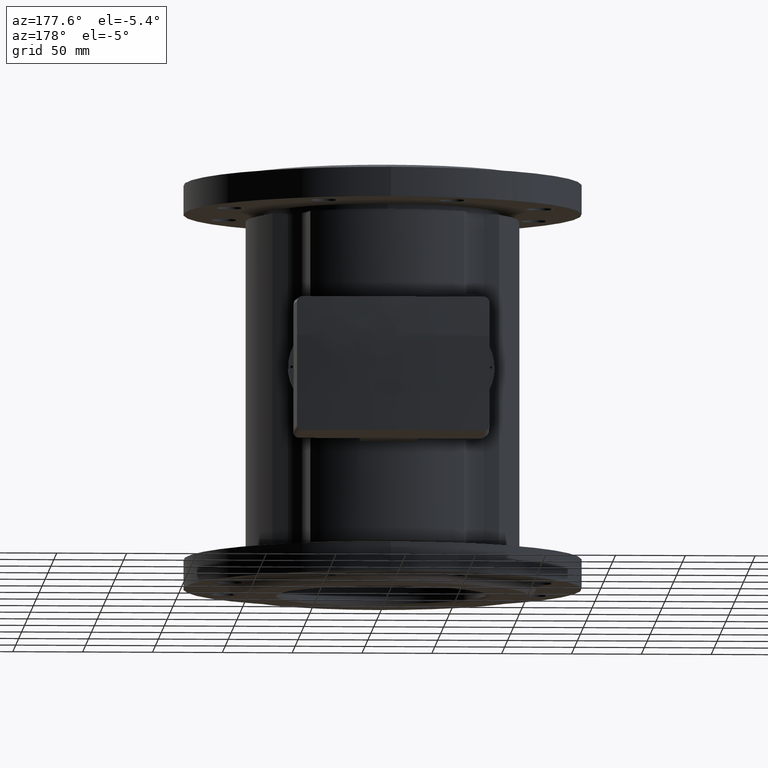
[diagram: clean part render]
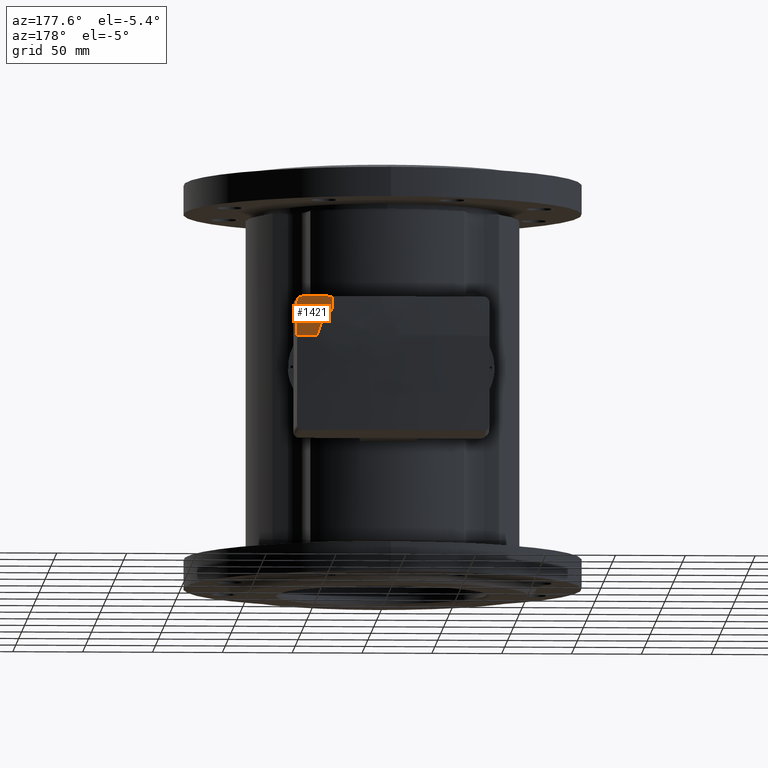
[diagram: same view with one face highlighted and labeled with its STEP entity id]
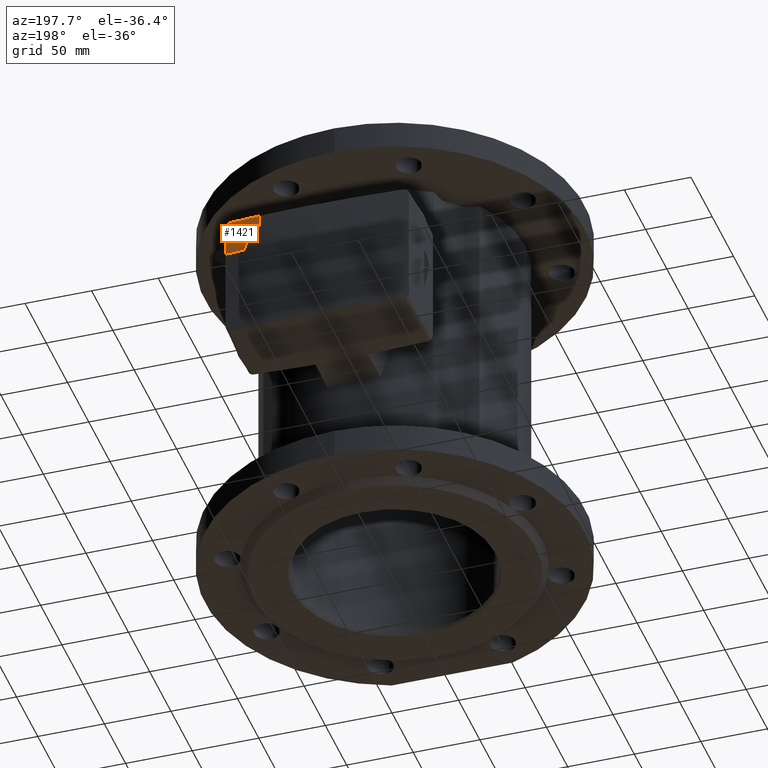
[diagram: same view with one face highlighted and labeled with its STEP entity id]
A machine part, auxiliary view. The second image highlights one B-rep face of the part: STEP entity #1421.
A second angle (auxiliary view) of the same face is appended — the face is thin or edge-on in the first view.
In plain terms, the highlighted face is a freeform B-spline surface patch.
Its self-contained STEP definition (entity closure, byte-faithful):
#52 = CARTESIAN_POINT ( 'NONE',  ( 69.88856080529667736, 116.3482816745843706, -59.99999999999987210 ) ) ;
#331 = ORIENTED_EDGE ( 'NONE', *, *, #6413, .T. ) ;
#367 = CARTESIAN_POINT ( 'NONE',  ( 54.30000000000327276, 119.2942434137996912, 20.00000000000014211 ) ) ;
#457 = CARTESIAN_POINT ( 'NONE',  ( 43.30000000000319460, 118.8169891040125492, 48.02624051471721600 ) ) ;
#594 = EDGE_CURVE ( 'NONE', #6392, #4516, #5767, .T. ) ;
#661 = CARTESIAN_POINT ( 'NONE',  ( 46.79554586741452482, 120.9588001953380001, 20.03143319908789977 ) ) ;
#667 = CARTESIAN_POINT ( 'NONE',  ( 68.72417617453443484, 117.3367490944136335, 45.16918450152577691 ) ) ;
#843 = CARTESIAN_POINT ( 'NONE',  ( 68.02867663921450969, 117.3172964097637134, 46.57510350077493655 ) ) ;
#882 = FACE_OUTER_BOUND ( 'NONE', #1611, .T. ) ;
#903 = B_SPLINE_CURVE_WITH_KNOTS ( 'NONE', 3,
 ( #4676, #2150, #1143, #2013 ),
 .UNSPECIFIED., .F., .F.,
 ( 4, 4 ),
 ( 0.0000000000000000000, 0.009037447801743493311 ),
 .UNSPECIFIED. ) ;
#936 = CARTESIAN_POINT ( 'NONE',  ( 46.03896838441832529, 119.2390083285286693, 36.45011489153264961 ) ) ;
#1044 = B_SPLINE_CURVE_WITH_KNOTS ( 'NONE', 3,
 ( #367, #3970, #2412, #6465, #3007, #1376, #3507, #936, #2450, #4005 ),
 .UNSPECIFIED., .F., .F.,
 ( 4, 2, 2, 2, 4 ),
 ( 0.0000000000000000000, 0.005569447807477706167, 0.01113889561495541233, 0.01670834342243313064, 0.02227779122991084548 ),
 .UNSPECIFIED. ) ;
#1061 = CARTESIAN_POINT ( 'NONE',  ( -23.38863757325916026, 121.8976189610413883, 20.03143319908789977 ) ) ;
#1089 = CARTESIAN_POINT ( 'NONE',  ( 23.31512317394849987, 119.1504509794522022, -59.99999999999987210 ) ) ;
#1143 = CARTESIAN_POINT ( 'NONE',  ( 43.30000000000328697, 118.9825402045575373, 45.01828015396576177 ) ) ;
#1150 = VERTEX_POINT ( 'NONE', #2110 ) ;
#1224 = ORIENTED_EDGE ( 'NONE', *, *, #1862, .T. ) ;
#1354 = CARTESIAN_POINT ( 'NONE',  ( 68.32258003270919744, 117.3176014679587098, 46.13721044864298904 ) ) ;
#1376 = CARTESIAN_POINT ( 'NONE',  ( 49.48216481587286353, 119.2225404151265593, 32.07227828918227175 ) ) ;
#1421 = ADVANCED_FACE ( 'NONE', ( #882 ), #1831, .T. ) ;
#1446 = CARTESIAN_POINT ( 'NONE',  ( 68.83754411664116901, 117.7883811060819568, 36.08748281840905037 ) ) ;
#1451 = ORIENTED_EDGE ( 'NONE', *, *, #4093, .T. ) ;
#1602 = CARTESIAN_POINT ( 'NONE',  ( 46.64884659596508953, 118.2145689683957386, 60.00000000000019185 ) ) ;
#1611 = EDGE_LOOP ( 'NONE', ( #4862, #2101, #2271, #331, #1451, #1224 ) ) ;
#1630 = CARTESIAN_POINT ( 'NONE',  ( -23.31512317394856026, 119.1504509794522022, 60.00000000000019185 ) ) ;
#1666 = CARTESIAN_POINT ( 'NONE',  ( -46.79554586752336576, 120.9588001966916693, 20.03143319908789977 ) ) ;
#1674 = CARTESIAN_POINT ( 'NONE',  ( 66.61693498862307194, 117.3641881503081805, 47.72409386469779946 ) ) ;
#1702 = CARTESIAN_POINT ( 'NONE',  ( -46.79554586752337997, 120.9588001966916551, -20.03143319908757647 ) ) ;
#1831 =( BOUNDED_SURFACE ( )  B_SPLINE_SURFACE ( 3, 3, ( 
 ( #4954, #1602, #6185, #1630, #5220, #2136 ),
 ( #2201, #661, #2598, #1061, #1666, #2665 ),
 ( #6254, #3194, #4619, #3624, #1702, #2632 ),
 ( #52, #5150, #1089, #2102, #3095, #4658 ) ),
 .UNSPECIFIED., .F., .F., .T. ) 
 B_SPLINE_SURFACE_WITH_KNOTS ( ( 4, 4 ),
 ( 4, 2, 4 ),
 ( 0.0000000000000000000, 1.000000000000000000 ),
 ( 0.0000000000000000000, 0.4999999999999993894, 1.000000000000000000 ),
 .UNSPECIFIED. ) 
 GEOMETRIC_REPRESENTATION_ITEM ( )  RATIONAL_B_SPLINE_SURFACE ( (
 ( 1.000000000000000000, 1.000000000000000000, 1.000000000000000000, 1.000000000000000000, 1.000000000000000000, 1.000000000000000000),
 ( 0.9984308062845369536, 0.9984308062845369536, 0.9984308062845369536, 0.9984308062845369536, 0.9984308062845369536, 0.9984308062845369536),
 ( 0.9984308062845369536, 0.9984308062845369536, 0.9984308062845369536, 0.9984308062845369536, 0.9984308062845369536, 0.9984308062845369536),
 ( 1.000000000000000000, 1.000000000000000000, 1.000000000000000000, 1.000000000000000000, 1.000000000000000000, 1.000000000000000000) ) ) 
 REPRESENTATION_ITEM ( '' )  SURFACE ( )  );
#1862 = EDGE_CURVE ( 'NONE', #3503, #1150, #903, .T. ) ;
#1878 = CARTESIAN_POINT ( 'NONE',  ( 54.30000000000327276, 119.2942434137996912, 20.00000000000014211 ) ) ;
#2013 = CARTESIAN_POINT ( 'NONE',  ( 43.30000000000319460, 118.8169891040125492, 48.02624051471721600 ) ) ;
#2101 = ORIENTED_EDGE ( 'NONE', *, *, #5369, .T. ) ;
#2102 = CARTESIAN_POINT ( 'NONE',  ( -23.31512317394856026, 119.1504509794522022, -59.99999999999987210 ) ) ;
#2110 = CARTESIAN_POINT ( 'NONE',  ( 43.30000000000319460, 118.8169891040125492, 48.02624051471721600 ) ) ;
#2136 = CARTESIAN_POINT ( 'NONE',  ( -69.88856080529681947, 116.3482816745843849, 60.00000000000019185 ) ) ;
#2150 = CARTESIAN_POINT ( 'NONE',  ( 43.30000000000327276, 119.1325347996097292, 42.00953332143252794 ) ) ;
#2201 = CARTESIAN_POINT ( 'NONE',  ( 70.10846678389839326, 119.0866339674137322, 20.03143319908789977 ) ) ;
#2271 = ORIENTED_EDGE ( 'NONE', *, *, #594, .F. ) ;
#2358 = CARTESIAN_POINT ( 'NONE',  ( 65.36451329990252646, 117.4385527262245432, 48.09654499602201838 ) ) ;
#2412 = CARTESIAN_POINT ( 'NONE',  ( 53.45245354905134150, 119.2573932013562796, 23.64516982527139888 ) ) ;
#2450 = CARTESIAN_POINT ( 'NONE',  ( 44.73190572166275558, 119.2505993677245328, 37.77694672991280811 ) ) ;
#2452 = CARTESIAN_POINT ( 'NONE',  ( 59.14353862750320445, 118.9930838086279152, 20.00000000000015277 ) ) ;
#2495 = CARTESIAN_POINT ( 'NONE',  ( 50.48662995109247476, 118.4590510838468305, 48.05116581529351549 ) ) ;
#2543 = B_SPLINE_CURVE_WITH_KNOTS ( 'NONE', 3,
 ( #457, #2495, #3490, #4518 ),
 .UNSPECIFIED., .F., .F.,
 ( 4, 4 ),
 ( 0.09924779807301745138, 0.1208257779478592031 ),
 .UNSPECIFIED. ) ;
#2598 = CARTESIAN_POINT ( 'NONE',  ( 23.38863757325909631, 121.8976189610413883, 20.03143319908789977 ) ) ;
#2632 = CARTESIAN_POINT ( 'NONE',  ( -70.10846678389854958, 119.0866339674137322, -20.03143319908757647 ) ) ;
#2665 = CARTESIAN_POINT ( 'NONE',  ( -70.10846678389854958, 119.0866339674137464, 20.03143319908789977 ) ) ;
#2672 = CARTESIAN_POINT ( 'NONE',  ( 64.84050466156270431, 117.4763868200370922, 48.11961033018308598 ) ) ;
#2858 = CARTESIAN_POINT ( 'NONE',  ( 65.10457750872359384, 117.4566628465159681, 48.12098421838546614 ) ) ;
#2912 = B_SPLINE_CURVE_WITH_KNOTS ( 'NONE', 3,
 ( #2672, #2858, #2358, #5410, #4239, #1674, #6261, #4667, #4202, #5226, #843, #1354, #6193, #3737, #667, #3704, #4384, #4845 ),
 .UNSPECIFIED., .F., .F.,
 ( 4, 2, 2, 2, 2, 2, 2, 2, 4 ),
 ( 0.0000000000000000000, 0.0007832512417930515090, 0.001566502483586103018, 0.002349753725379154744, 0.003133004967172206036, 0.003916256208965257328, 0.004699507450758309487, 0.005482758692551360780, 0.006266009934344412072 ),
 .UNSPECIFIED. ) ;
#2980 = CARTESIAN_POINT ( 'NONE',  ( 68.82072409610809416, 118.2700434742904463, 19.99999999408951012 ) ) ;
#3007 = CARTESIAN_POINT ( 'NONE',  ( 51.36882680859501704, 119.2272148030075556, 28.81389458852770247 ) ) ;
#3011 = CARTESIAN_POINT ( 'NONE',  ( 68.82072409610809416, 118.2700434742904463, 19.99999999408951012 ) ) ;
#3095 = CARTESIAN_POINT ( 'NONE',  ( -46.64884659607293571, 118.2145689697364759, -59.99999999999987210 ) ) ;
#3129 = CARTESIAN_POINT ( 'NONE',  ( 68.85180067040619178, 117.3801268215261047, 44.12543068137473767 ) ) ;
#3194 = CARTESIAN_POINT ( 'NONE',  ( 46.79554586741448929, 120.9588001953380001, -20.03143319908757647 ) ) ;
#3490 = CARTESIAN_POINT ( 'NONE',  ( 57.66679943119087426, 118.0122009847008115, 48.08228779176451440 ) ) ;
#3503 = VERTEX_POINT ( 'NONE', #6517 ) ;
#3507 = CARTESIAN_POINT ( 'NONE',  ( 48.41409869788232356, 119.2249788206059264, 33.59778130823136877 ) ) ;
#3624 = CARTESIAN_POINT ( 'NONE',  ( -23.38863757325916026, 121.8976189610413741, -20.03143319908757647 ) ) ;
#3704 = CARTESIAN_POINT ( 'NONE',  ( 68.82679428005110367, 117.3553337566755488, 44.65157281697170788 ) ) ;
#3737 = CARTESIAN_POINT ( 'NONE',  ( 68.64728441925079494, 117.3296705383036880, 45.42187961307268296 ) ) ;
#3970 = CARTESIAN_POINT ( 'NONE',  ( 53.95233419585691337, 119.2734654236195269, 21.85072242859529723 ) ) ;
#4005 = CARTESIAN_POINT ( 'NONE',  ( 43.30000000000327987, 119.2669725505832332, 39.00000000000000000 ) ) ;
#4009 = CARTESIAN_POINT ( 'NONE',  ( 63.98411464225971201, 118.6516675527629019, 20.00000000000015277 ) ) ;
#4093 = EDGE_CURVE ( 'NONE', #4129, #3503, #1044, .T. ) ;
#4129 = VERTEX_POINT ( 'NONE', #1878 ) ;
#4202 = CARTESIAN_POINT ( 'NONE',  ( 67.49134060866465745, 117.3284229424869096, 47.14509432456333826 ) ) ;
#4239 = CARTESIAN_POINT ( 'NONE',  ( 66.13103276956145748, 117.3903160651449724, 47.92237998030375223 ) ) ;
#4384 = CARTESIAN_POINT ( 'NONE',  ( 68.85226979687772086, 117.3666927970707974, 44.38992757031661540 ) ) ;
#4516 = VERTEX_POINT ( 'NONE', #3129 ) ;
#4518 = CARTESIAN_POINT ( 'NONE',  ( 64.84050466156270431, 117.4763868200370922, 48.11961033018308598 ) ) ;
#4538 = CARTESIAN_POINT ( 'NONE',  ( 68.82072409610809416, 118.2700434742904463, 19.99999999408951012 ) ) ;
#4619 = CARTESIAN_POINT ( 'NONE',  ( 23.38863757325909631, 121.8976189610413741, -20.03143319908757647 ) ) ;
#4658 = CARTESIAN_POINT ( 'NONE',  ( -69.88856080529681947, 116.3482816745843849, -59.99999999999987210 ) ) ;
#4667 = CARTESIAN_POINT ( 'NONE',  ( 67.28438361037673587, 117.3352955493763972, 47.31356748035820203 ) ) ;
#4676 = CARTESIAN_POINT ( 'NONE',  ( 43.30000000000327987, 119.2669725505832332, 39.00000000000000000 ) ) ;
#4845 = CARTESIAN_POINT ( 'NONE',  ( 68.85180067040619178, 117.3801268215261047, 44.12543068137473767 ) ) ;
#4862 = ORIENTED_EDGE ( 'NONE', *, *, #4869, .T. ) ;
#4869 = EDGE_CURVE ( 'NONE', #1150, #5265, #2543, .T. ) ;
#4954 = CARTESIAN_POINT ( 'NONE',  ( 69.88856080529667736, 116.3482816745843706, 60.00000000000019185 ) ) ;
#5007 = CARTESIAN_POINT ( 'NONE',  ( 54.30000000000327276, 119.2942434137996912, 20.00000000000014211 ) ) ;
#5069 = CARTESIAN_POINT ( 'NONE',  ( 68.85180067040619178, 117.3801268215261047, 44.12543068137473767 ) ) ;
#5150 = CARTESIAN_POINT ( 'NONE',  ( 46.64884659596508953, 118.2145689683957386, -59.99999999999987210 ) ) ;
#5220 = CARTESIAN_POINT ( 'NONE',  ( -46.64884659607293571, 118.2145689697364759, 60.00000000000019185 ) ) ;
#5226 = CARTESIAN_POINT ( 'NONE',  ( 67.86223269600841945, 117.3194842672401563, 46.77650379070929176 ) ) ;
#5265 = VERTEX_POINT ( 'NONE', #6175 ) ;
#5369 = EDGE_CURVE ( 'NONE', #5265, #4516, #2912, .T. ) ;
#5410 = CARTESIAN_POINT ( 'NONE',  ( 65.87640179127399165, 117.4054479918286233, 47.99785561875972206 ) ) ;
#5505 = CARTESIAN_POINT ( 'NONE',  ( 68.82718551007982910, 118.0850127872308519, 28.04567234005596177 ) ) ;
#5767 = B_SPLINE_CURVE_WITH_KNOTS ( 'NONE', 3,
 ( #3011, #5505, #1446, #5069 ),
 .UNSPECIFIED., .F., .F.,
 ( 4, 4 ),
 ( 0.08004967273539916051, 0.1042022336557257567 ),
 .UNSPECIFIED. ) ;
#6123 =( BOUNDED_CURVE ( )  B_SPLINE_CURVE ( 3, ( #2980, #4009, #2452, #5007 ),
 .UNSPECIFIED., .F., .T. ) 
 B_SPLINE_CURVE_WITH_KNOTS ( ( 4, 4 ),
 ( 0.0000000000000000000, 0.01455679730630825112 ),
 .UNSPECIFIED. ) 
 CURVE ( )  GEOMETRIC_REPRESENTATION_ITEM ( )  RATIONAL_B_SPLINE_CURVE ( ( 0.9989535973314596085, 0.9989535973314596085, 0.9989535973314596085, 0.9989535973314596085 ) ) 
 REPRESENTATION_ITEM ( '' )  );
#6175 = CARTESIAN_POINT ( 'NONE',  ( 64.84050466156270431, 117.4763868200370922, 48.11961033018308598 ) ) ;
#6185 = CARTESIAN_POINT ( 'NONE',  ( 23.31512317394849987, 119.1504509794522022, 60.00000000000019185 ) ) ;
#6193 = CARTESIAN_POINT ( 'NONE',  ( 68.44722276133830974, 117.3201298102444667, 45.90415747957177217 ) ) ;
#6254 = CARTESIAN_POINT ( 'NONE',  ( 70.10846678389839326, 119.0866339674137180, -20.03143319908757647 ) ) ;
#6261 = CARTESIAN_POINT ( 'NONE',  ( 66.84758231737205847, 117.3531876737520463, 47.60228931576119038 ) ) ;
#6392 = VERTEX_POINT ( 'NONE', #4538 ) ;
#6413 = EDGE_CURVE ( 'NONE', #6392, #4129, #6123, .T. ) ;
#6465 = CARTESIAN_POINT ( 'NONE',  ( 52.16100591528452668, 119.2342686841710417, 27.12622588605265861 ) ) ;
#6517 = CARTESIAN_POINT ( 'NONE',  ( 43.30000000000327987, 119.2669725505832332, 39.00000000000000000 ) ) ;